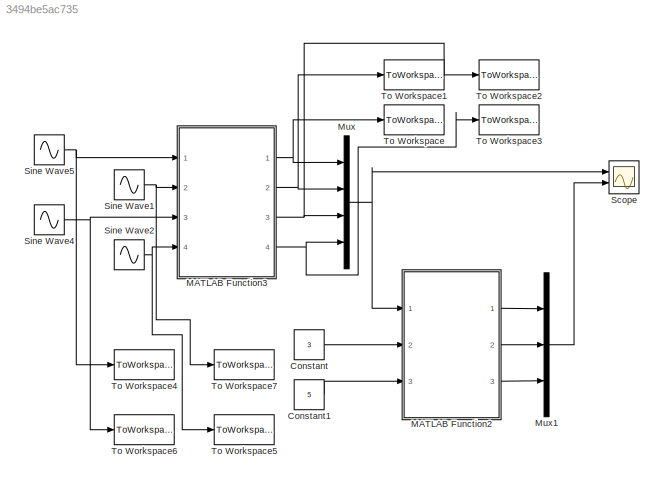
MODEL slx_3494be5ac735
KIND model
CONFIG AbsTol = auto
CONFIG FixedStep = 0.01
CONFIG MaxStep = auto
CONFIG MinStep = auto
CONFIG RelTol = 1e-3
CONFIG SampleTimeConstraint = Unconstrained
CONFIG Solver = ode4
CONFIG SolverMode = Auto
CONFIG SolverName = ode4
CONFIG StartTime = 0.0
CONFIG StopTime = 10
BLOCK [Constant] Constant
  Value = 3
BLOCK [Constant] Constant1
  Value = 5
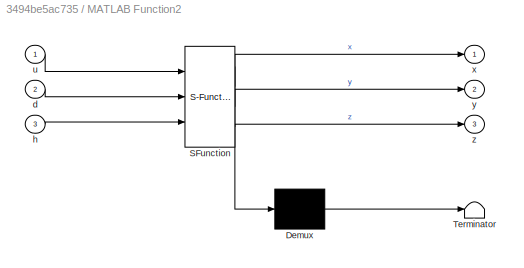
BLOCK [SubSystem] MATLAB Function2
  ErrorFcn = Stateflow.Translate.translate
  PermitHierarchicalResolution = ExplicitOnly
  Ports = [3, 3]
  RequestExecContextInheritance = off
  SFBlockType = MATLAB Function
  TreatAsAtomicUnit = on
BLOCK [Demux] MATLAB Function2/ Demux 
  Outputs = 1
  Ports = [1, 1]
BLOCK [S-Function] MATLAB Function2/ SFunction 
  EnableBusSupport = on
  FunctionName = sf_sfun
  PortCounts = [3 4]
  Ports = [3, 4]
  Tag = Stateflow S-Function robot_data 4
BLOCK [Terminator] MATLAB Function2/ Terminator 
BLOCK [Inport] MATLAB Function2/d
  IconDisplay = Port number
  Port = 2
BLOCK [Inport] MATLAB Function2/h
  IconDisplay = Port number
  Port = 3
BLOCK [Inport] MATLAB Function2/u
  IconDisplay = Port number
BLOCK [Outport] MATLAB Function2/x
  IconDisplay = Port number
BLOCK [Outport] MATLAB Function2/y
  IconDisplay = Port number
  Port = 2
BLOCK [Outport] MATLAB Function2/z
  IconDisplay = Port number
  Port = 3
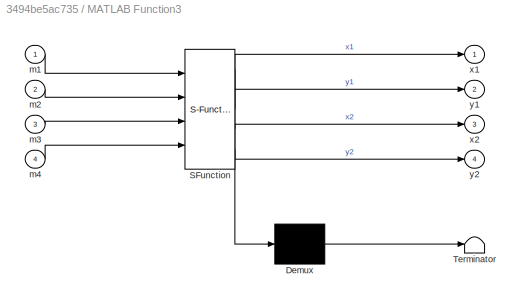
BLOCK [SubSystem] MATLAB Function3
  ErrorFcn = Stateflow.Translate.translate
  PermitHierarchicalResolution = ExplicitOnly
  Ports = [4, 4]
  RequestExecContextInheritance = off
  SFBlockType = MATLAB Function
  TreatAsAtomicUnit = on
BLOCK [Demux] MATLAB Function3/ Demux 
  Outputs = 1
  Ports = [1, 1]
BLOCK [S-Function] MATLAB Function3/ SFunction 
  EnableBusSupport = on
  FunctionName = sf_sfun
  PortCounts = [4 5]
  Ports = [4, 5]
  Tag = Stateflow S-Function robot_data 5
BLOCK [Terminator] MATLAB Function3/ Terminator 
BLOCK [Inport] MATLAB Function3/m1
  IconDisplay = Port number
BLOCK [Inport] MATLAB Function3/m2
  IconDisplay = Port number
  Port = 2
BLOCK [Inport] MATLAB Function3/m3
  IconDisplay = Port number
  Port = 3
BLOCK [Inport] MATLAB Function3/m4
  IconDisplay = Port number
  Port = 4
BLOCK [Outport] MATLAB Function3/x1
  IconDisplay = Port number
BLOCK [Outport] MATLAB Function3/x2
  IconDisplay = Port number
  Port = 3
BLOCK [Outport] MATLAB Function3/y1
  IconDisplay = Port number
  Port = 2
BLOCK [Outport] MATLAB Function3/y2
  IconDisplay = Port number
  Port = 4
BLOCK [Mux] Mux
  DisplayOption = bar
  Ports = [4, 1]
BLOCK [Mux] Mux1
  DisplayOption = bar
  Inputs = 3
  Ports = [3, 1]
BLOCK [Scope] Scope
  Floating = off
  NumInputPorts = 2
  Ports = [2]
  YMax = 5~5
  YMin = -5~-5
BLOCK [Sin] Sine Wave1
  Frequency = 2
  Ports = [0, 1]
  SampleTime = 0
BLOCK [Sin] Sine Wave2
  Frequency = 2
  Phase = 3.14
  Ports = [0, 1]
  SampleTime = 0
BLOCK [Sin] Sine Wave4
  Phase = 3.14
  Ports = [0, 1]
  SampleTime = 0
BLOCK [Sin] Sine Wave5
  Ports = [0, 1]
  SampleTime = 0
BLOCK [ToWorkspace] To Workspace
  FixptAsFi = on
  MaxDataPoints = inf
  Ports = [1]
  SampleTime = -1
  Save2DSignal = 3-D array (concatenate along third dimension)
  SaveFormat = Timeseries
  VariableName = x1
BLOCK [ToWorkspace] To Workspace1
  FixptAsFi = on
  MaxDataPoints = inf
  Ports = [1]
  SampleTime = -1
  Save2DSignal = 3-D array (concatenate along third dimension)
  SaveFormat = Timeseries
  VariableName = y1
BLOCK [ToWorkspace] To Workspace2
  FixptAsFi = on
  MaxDataPoints = inf
  Ports = [1]
  SampleTime = -1
  Save2DSignal = 3-D array (concatenate along third dimension)
  SaveFormat = Timeseries
  VariableName = x2
BLOCK [ToWorkspace] To Workspace3
  FixptAsFi = on
  MaxDataPoints = inf
  Ports = [1]
  SampleTime = -1
  Save2DSignal = 3-D array (concatenate along third dimension)
  SaveFormat = Timeseries
  VariableName = y2
BLOCK [ToWorkspace] To Workspace4
  FixptAsFi = on
  MaxDataPoints = inf
  Ports = [1]
  SampleTime = -1
  Save2DSignal = 3-D array (concatenate along third dimension)
  SaveFormat = Timeseries
  VariableName = m1
BLOCK [ToWorkspace] To Workspace5
  FixptAsFi = on
  MaxDataPoints = inf
  Ports = [1]
  SampleTime = -1
  Save2DSignal = 3-D array (concatenate along third dimension)
  SaveFormat = Timeseries
  VariableName = m4
BLOCK [ToWorkspace] To Workspace6
  FixptAsFi = on
  MaxDataPoints = inf
  Ports = [1]
  SampleTime = -1
  Save2DSignal = 3-D array (concatenate along third dimension)
  SaveFormat = Timeseries
  VariableName = m3
BLOCK [ToWorkspace] To Workspace7
  FixptAsFi = on
  MaxDataPoints = inf
  Ports = [1]
  SampleTime = -1
  Save2DSignal = 3-D array (concatenate along third dimension)
  SaveFormat = Timeseries
  VariableName = m2
LINE Constant1:1 -> MATLAB Function2:3
LINE Constant:1 -> MATLAB Function2:2
LINE MATLAB Function2:1 -> Mux1:1
LINE MATLAB Function2:2 -> Mux1:2
LINE MATLAB Function2:3 -> Mux1:3
NET MATLAB Function3:1 -> Mux:1, To Workspace:1
NET MATLAB Function3:2 -> Mux:2, To Workspace1:1
NET MATLAB Function3:3 -> Mux:3, To Workspace2:1
NET MATLAB Function3:4 -> Mux:4, To Workspace3:1
LINE Mux1:1 -> Scope:2
NET Mux:1 -> MATLAB Function2:1, Scope:1
NET Sine Wave1:1 -> MATLAB Function3:2, To Workspace7:1
NET Sine Wave2:1 -> MATLAB Function3:4, To Workspace5:1
NET Sine Wave4:1 -> MATLAB Function3:3, To Workspace6:1
NET Sine Wave5:1 -> MATLAB Function3:1, To Workspace4:1
note: NET lines group one-source signal fan-out (src -> all destinations, sorted); 1:1 wires keep LINE
CHART MATLAB Function2 states=1 transitions=1
  STATE_LABEL 'eML_blk_kernel()'
  STATE_LABEL 'SCRIPT:\nfunction [x,y,z] = Robot(u,d,h)\n%按照原有MPC方法，该函数的输入应是对机器人的控制输入量u=（v1,v2,v3,v4）四个电机的当前转速\n%考虑传输过程的时延以及噪声误差，在MPC过程利用预测的当前位置作为输入控制量带入\n%u=(x1,x2,y1,y2)当前四个丝杆相对固定坐标位置\n\nx1 = u(1);y1 = u(2);x2 = u(3); y2 = u(4);\n\n% T01=[1,0,0,0;0,cos(atan2((x1+x2),d)),-sin(atan2((x1+x2),d)),0;0,sin(atan2((x1+x2),d)),cos(atan2((x1+x2),d)),x1;0,0,0,1];\n% T1m=[0,0,1,0;1,0,0,0,;0,1,0,0;0,0,0,1];\n% Tmm1=[0,1,0,0;-1,0,0,0...<+334ch>'
CHART MATLAB Function3 states=1 transitions=1
  STATE_LABEL 'eML_blk_kernel()'
  STATE_LABEL 'SCRIPT:\nfunction [x1,y1,x2,y2] = Signal(m1,m2,m3,m4)\n\n\n\n%m1,m2,m3,m4为四个电机的当前时刻的角度值\n\n%最远距离\nD = 2;\n% %螺距\n% n = 0.02;\n% %最大圈数\n% ratio = D / n;\nv=sqrt(0.01)*randn(4,1);\nx1 = m1 * D + v(1);\ny1 = m2 * D + v(2);\nx2 = m3 * D + v(3);\ny2 = m4 * D + v(4);\n\nif x1>=2\n    x1=2;\nelse\n    if x1<=-2\n        x1=-2;\n    end\nend\nif x2>=2\n    x2=2;\nelse\n    if x2<=-2\n        x2=-2;\n    end\nend\nif y1>=2\n    y1=2;\nelse\n...<+112ch>'
